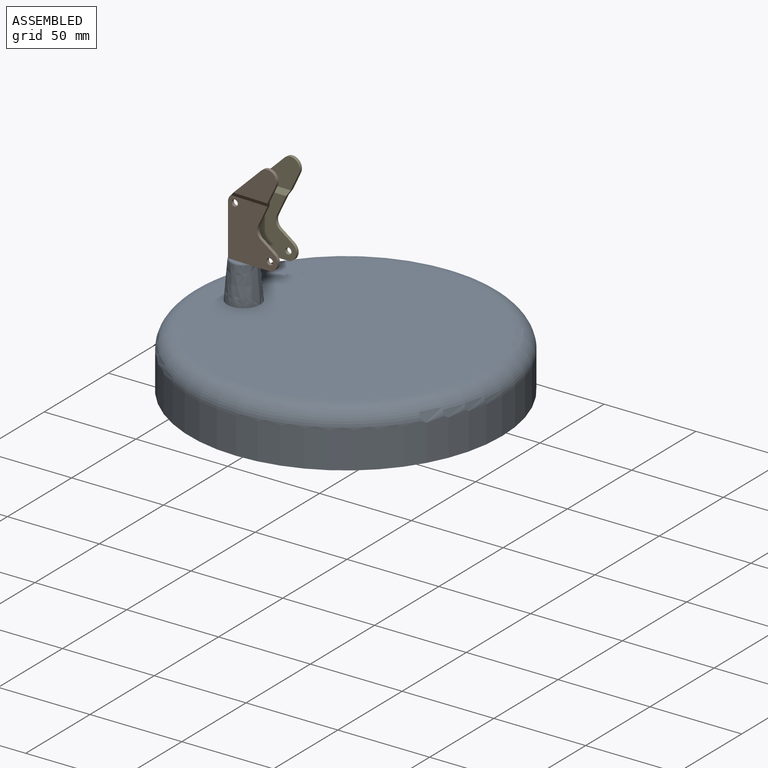
[diagram: assembled view]
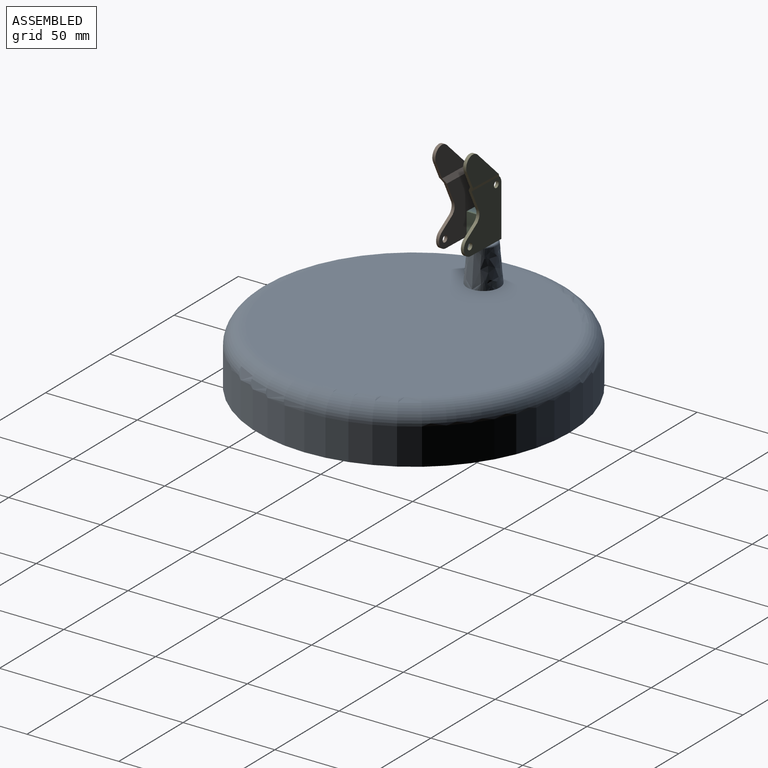
[diagram: assembled view, second angle]
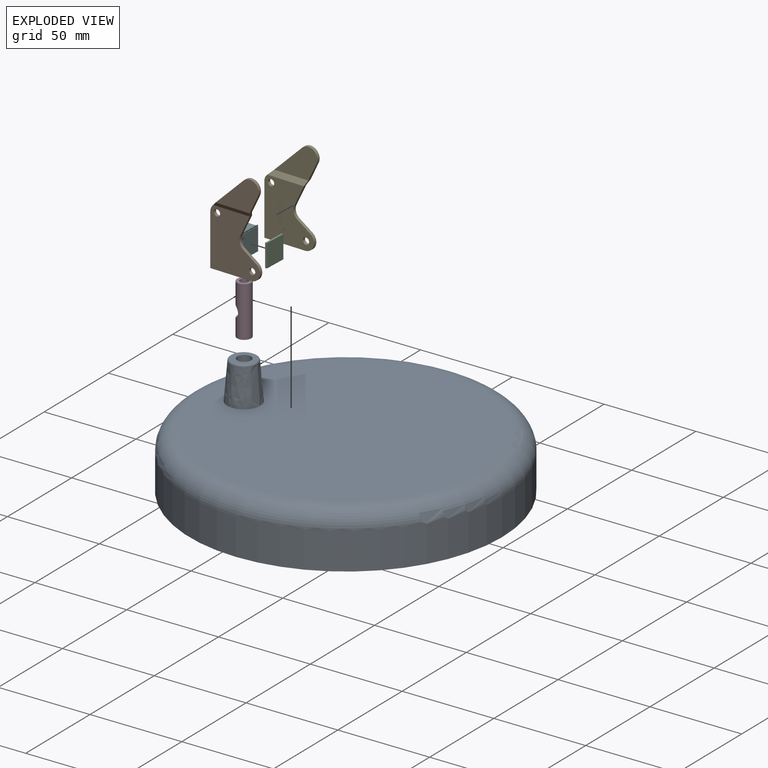
[diagram: exploded view]
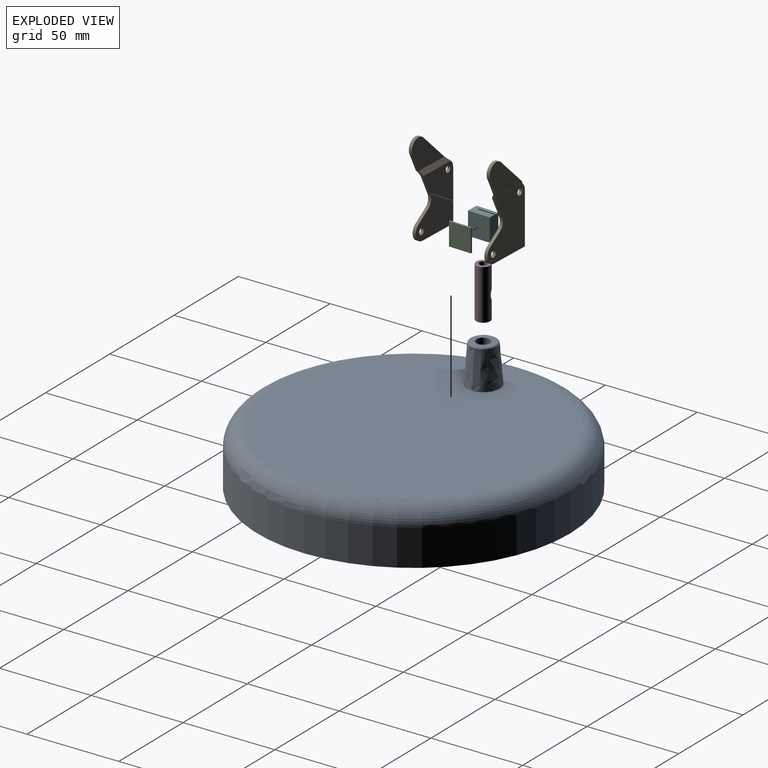
[diagram: exploded view, second angle]
ASSEMBLY  parts=6 mates=5
PART A: 9 faces, bbox 184.3x184.3x50.8 mm
  f0: bspline ~21x17.9mm, area 1021.5mm2, adj f2,f7,f8
  f1: cylinder r=3.75mm len=50.8mm, axis (0,0,1), area 1191.1mm2, adj f4,f6,f8
  f2: plane 150.31x150.31mm, normal (0,0,1), area 17493.3mm2, adj f0,f5
  f3: cylinder r=85.16mm len=170.31mm, axis (0,0,-1), area 10594mm2, adj f4,f5
  f4: plane 170.31x170.31mm, normal (0,0,-1), area 22737.1mm2, adj f1,f3
  f5: torus R=75.16mm, axis (0,0,1), area 8045.9mm2, adj f2,f3
  f6: plane 12.57x12.56mm, normal (0,0,1), area 79.7mm2, adj f1,f7
  f7: bspline ~14.57x14.56mm, area 64.5mm2, adj f0,f6
  f8: cylinder r=1.35mm len=4.38mm, axis (-1,0,0), area 37.2mm2, adj f0,f1
PART B: 17 faces, bbox 51.5x3.4x28.6 mm
  f0: plane 22.79x1.7mm, normal (1,0,-0.03), area 38.8mm2, adj f1,f8,f9,f12
  f1: plane 27.78x1.7mm, normal (0.03,0,1), area 47.3mm2, adj f0,f2,f9,f12
  f2: cylinder r=5mm len=3.63mm, axis (0,-1,0), area 6.8mm2, adj f1,f3,f9,f12
  f3: plane 18.54x17.72mm, normal (-0.69,0,0.72), area 43.6mm2, adj f2,f4,f9,f10,f11,f12,f13,f14
  f4: cylinder r=5mm len=8.61mm, axis (0,-1,0), area 23.7mm2, adj f3,f5,f11,f13
  f5: plane 23.5x10.3mm, normal (0.4,0,-0.92), area 43.6mm2, adj f4,f6,f9,f10,f11,f12,f13,f14
  f6: cylinder r=5mm len=6.21mm, axis (0,-1,0), area 12mm2, adj f5,f7,f9,f12
  f7: plane 7.42x4.8mm, normal (-0.84,0,-0.54), area 15mm2, adj f6,f8,f9,f12
  f8: cylinder r=5mm len=9.2mm, axis (0,-1,0), area 21.5mm2, adj f0,f7,f9,f12
  f9: plane 32.28x28.58mm, normal (0,1,0), area 655.9mm2, adj f0,f1,f2,f3,f5,f6,f7,f8
  f10: plane 21.55x3.3mm, normal (0.55,0.83,-0.02), area 60.5mm2, adj f3,f5,f9,f11
  f11: plane 23.67x17.29mm, normal (0,1,0), area 226.4mm2, adj f3,f4,f5,f10
  f12: plane 32.28x28.58mm, normal (0,-1,0), area 655.9mm2, adj f0,f1,f2,f3,f5,f6,f7,f8
  f13: plane 23.67x17.29mm, normal (0,-1,0), area 226.4mm2, adj f3,f4,f5,f14
  f14: plane 21.55x3.3mm, normal (-0.55,-0.83,0.02), area 60.5mm2, adj f3,f5,f12,f13
  f15: cylinder r=1.75mm len=3.5mm, axis (0,1,0), area 18.7mm2, adj f9,f12
  f16: cylinder r=1.75mm len=3.5mm, axis (0,1,0), area 18.7mm2, adj f9,f12
PART C: 6 faces, bbox 12.5x12.2x1.4 mm
  f0: plane 12.16x1mm, normal (1,0,-0.03), area 12.2mm2, adj f1,f3,f4,f5
  f1: plane 12.48x1.43mm, normal (0,1,0), area 12.4mm2, adj f0,f2,f4,f5
  f2: plane 12.16x1mm, normal (-1,0,0.03), area 12.2mm2, adj f1,f3,f4,f5
  f3: plane 12.48x1.43mm, normal (0,-1,0), area 12.4mm2, adj f0,f2,f4,f5
  f4: plane 12.44x12.16mm, normal (0.03,0,1), area 151.4mm2, adj f0,f1,f2,f3
  f5: plane 12.44x12.16mm, normal (-0.03,0,-1), area 151.4mm2, adj f0,f1,f2,f3
PART D: 5 faces, bbox 27.7x7.7x8.6 mm
  f0: cylinder r=2.2mm len=27.54mm, axis (-1,0,0.03), area 352.2mm2, adj f2,f3,f4
  f1: cylinder r=3.85mm len=27.65mm, axis (-1,0,0.03), area 600.5mm2, adj f2,f3,f4
  f2: plane 7.7x7.7mm, normal (1,0,-0.03), area 31.4mm2, adj f0,f1
  f3: plane 7.7x7.7mm, normal (-1,0,0.03), area 31.4mm2, adj f0,f1
  f4: cylinder r=3.3mm len=7.62mm, axis (0,1,0), area 41.4mm2, adj f0,f1
PART E: 17 faces, bbox 51.5x3.4x28.6 mm
  f0: plane 22.79x1.7mm, normal (1,0,-0.03), area 38.8mm2, adj f1,f8,f9,f12
  f1: plane 27.78x1.7mm, normal (0.03,0,1), area 47.3mm2, adj f0,f2,f9,f12
  f2: cylinder r=5mm len=3.63mm, axis (0,1,0), area 6.8mm2, adj f1,f3,f9,f12
  f3: plane 18.54x17.72mm, normal (-0.69,0,0.72), area 43.6mm2, adj f2,f4,f9,f10,f11,f12,f13,f14
  f4: cylinder r=5mm len=8.61mm, axis (0,1,0), area 23.7mm2, adj f3,f5,f11,f13
  f5: plane 23.5x10.3mm, normal (0.4,0,-0.92), area 43.6mm2, adj f4,f6,f9,f10,f11,f12,f13,f14
  f6: cylinder r=5mm len=6.21mm, axis (0,1,0), area 12mm2, adj f5,f7,f9,f12
  f7: plane 7.42x4.8mm, normal (-0.84,0,-0.54), area 15mm2, adj f6,f8,f9,f12
  f8: cylinder r=5mm len=9.2mm, axis (0,1,0), area 21.5mm2, adj f0,f7,f9,f12
  f9: plane 32.28x28.58mm, normal (0,-1,0), area 655.9mm2, adj f0,f1,f2,f3,f5,f6,f7,f8
  f10: plane 21.55x3.3mm, normal (0.55,-0.83,-0.02), area 60.5mm2, adj f3,f5,f9,f11
  f11: plane 23.67x17.29mm, normal (0,-1,0), area 226.4mm2, adj f3,f4,f5,f10
  f12: plane 32.28x28.58mm, normal (0,1,0), area 655.9mm2, adj f0,f1,f2,f3,f5,f6,f7,f8
  f13: plane 23.67x17.29mm, normal (0,1,0), area 226.4mm2, adj f3,f4,f5,f14
  f14: plane 21.55x3.3mm, normal (-0.55,0.83,0.02), area 60.5mm2, adj f3,f5,f12,f13
  f15: cylinder r=1.75mm len=3.5mm, axis (0,-1,0), area 18.7mm2, adj f9,f12
  f16: cylinder r=1.75mm len=3.5mm, axis (0,-1,0), area 18.7mm2, adj f9,f12
PART F: 6 faces, bbox 12.7x12.2x6.8 mm
  f0: plane 12.16x6.4mm, normal (1,0,-0.03), area 77.8mm2, adj f1,f3,f4,f5
  f1: plane 12.66x6.83mm, normal (0,1,0), area 79.7mm2, adj f0,f2,f4,f5
  f2: plane 12.16x6.4mm, normal (-1,0,0.03), area 77.8mm2, adj f1,f3,f4,f5
  f3: plane 12.66x6.83mm, normal (0,-1,0), area 79.7mm2, adj f0,f2,f4,f5
  f4: plane 12.44x12.16mm, normal (-0.03,0,-1), area 151.4mm2, adj f0,f1,f2,f3
  f5: plane 12.44x12.16mm, normal (0.03,0,1), area 151.4mm2, adj f0,f1,f2,f3
PLACE A t=(-43.71,-10.58,-2.53)mm fixed
PLACE B rot(axis=(-0.69,0.01,0.72),178.5deg) t=(-87.68,-22.13,55.87)mm
PLACE C rot(axis=(-0.69,0.01,0.72),178.5deg) t=(-80.22,-20.73,55.87)mm
PLACE D rot(axis=(-0.69,0.01,0.72),178.5deg) t=(-87.33,-20.47,55.87)mm
PLACE E rot(axis=(-0.69,0.01,0.72),178.5deg) t=(-87.56,-18.77,55.87)mm
PLACE F rot(axis=(-0.69,0.01,0.72),178.5deg) t=(-87.62,-20.47,55.87)mm
MATE fastened F.f0 <-> D.f0  axis (0,0,-1) through (-98.63,-10.58,49.87)mm
MATE fastened B.f12 <-> F.f1  axis (0.04,1,0) through (-102.04,-16.54,49.87)mm
MATE fastened C.f4 <-> F.f4  axis (-1,0.04,0) through (-95.43,-10.69,56.1)mm
MATE cylindrical D.f0 <-> A.f1  axis (0,0,-1) through (-98.63,-10.58,22.47)mm
MATE fastened F.f3 <-> E.f12  axis (-0.04,-1,0) through (-101.61,-4.39,49.87)mm
